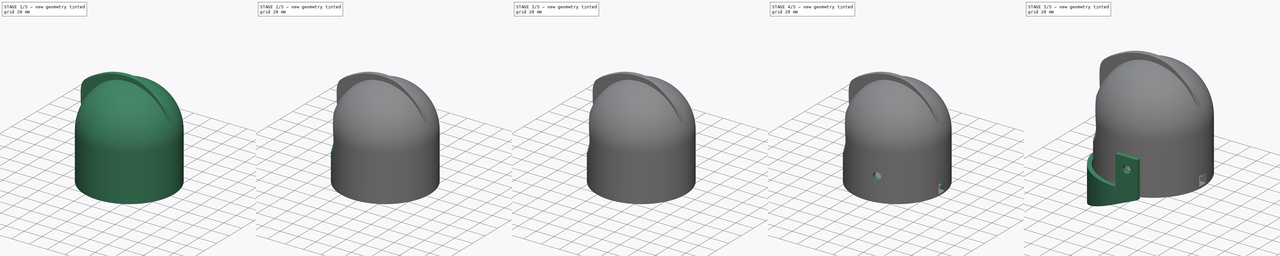
[diagram: build sequence overview — one tinted view per stage of 5, left to right]
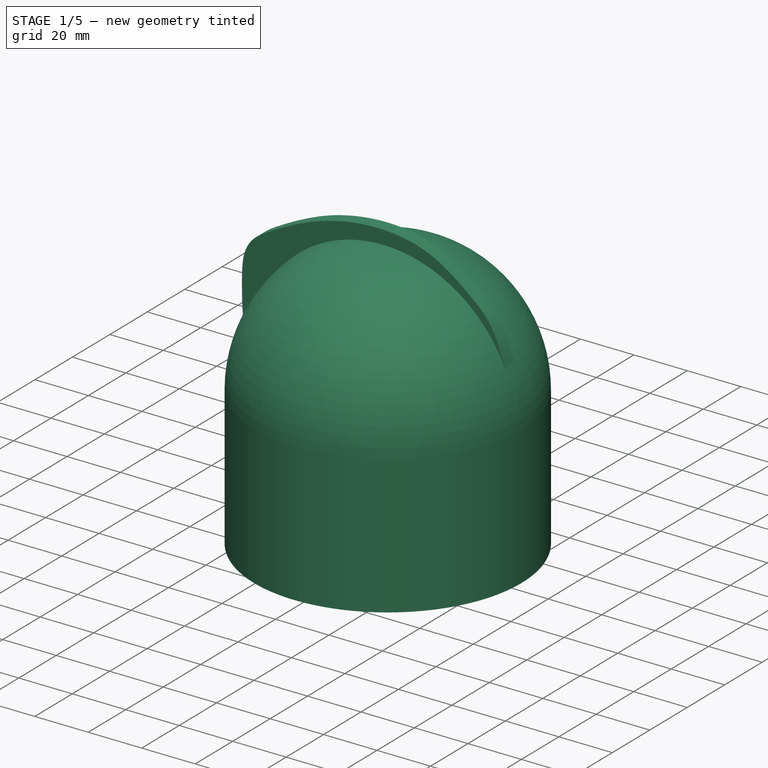
[diagram: stage 1 of 5 — iso view after this stage's code; geometry added in this stage tinted green]
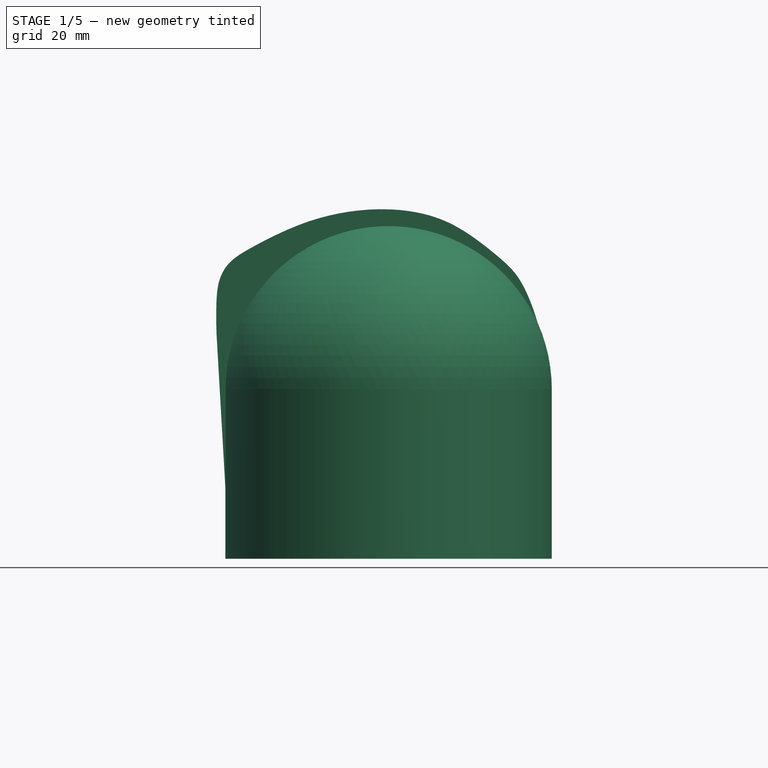
[diagram: stage 1 of 5 — front view after this stage's code; geometry added in this stage tinted green]
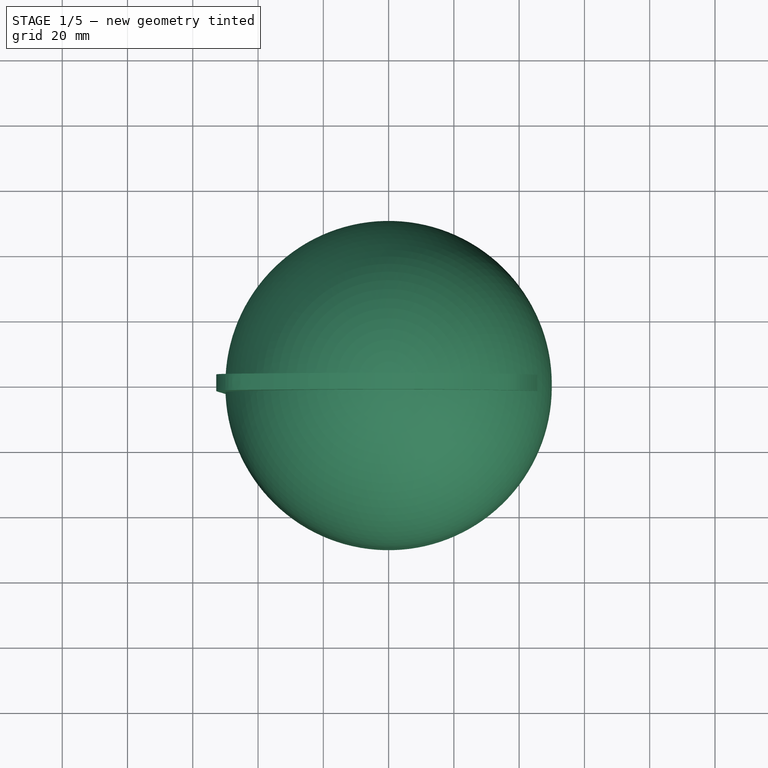
[diagram: stage 1 of 5 — top view after this stage's code; geometry added in this stage tinted green]
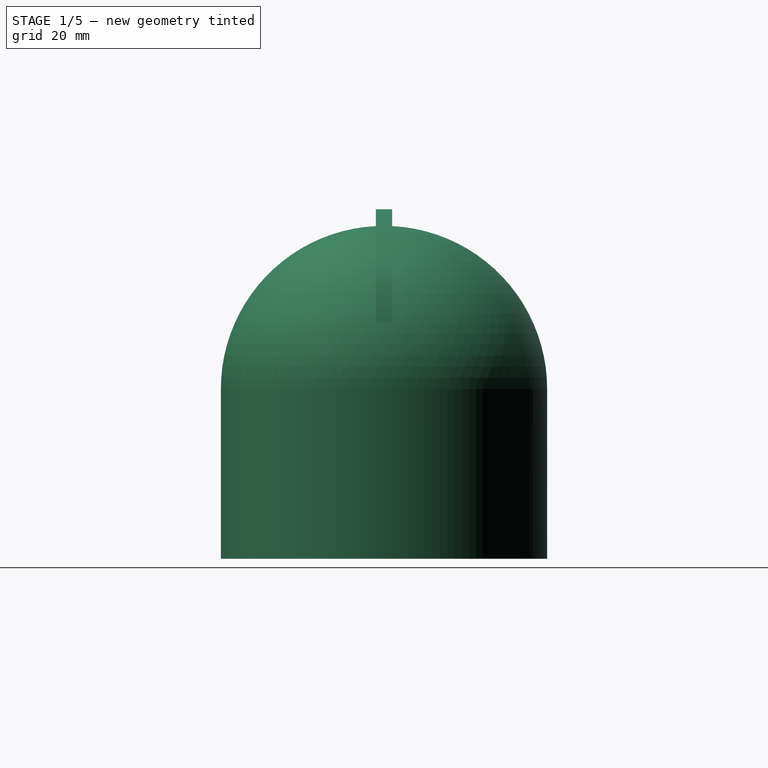
[diagram: stage 1 of 5 — right view after this stage's code; geometry added in this stage tinted green]
FCSTD DOCUMENT  (FreeCAD 1.0R39319 (Git))
Label: iron_robot
License: All rights reserved
LicenseURL: http://en.wikipedia.org/wiki/All_rights_reserved
objects: Sketcher::SketchObject×27, PartDesign::Pocket×13, PartDesign::Pad×11, PartDesign::Plane×9, PartDesign::Body×4, PartDesign::Chamfer×2, PartDesign::Revolution×1, PartDesign::Mirrored×1
note: 150 computed .brp shape members not serialized (recipe doc carries the construction recipe); baked Part::Feature solids carry a one-line shape summary decoded from their .brp

FEATURE [Sketcher::SketchObject] Sketch  label="Sketch_Casque"
  ArcFitTolerance = 1e-06
  AttachmentSupport = -> [XZ_Plane]
  FullyConstrained = false
  MakeInternals = false
  MapMode = 5
  Placement = pos=(0,0,0) rot=(1,0,0;1.5708rad)
  sketch-geometry (7):
    g0: ArcOfCircle CenterX=0 CenterY=0 CenterZ=0 NormalX=0 NormalY=0 NormalZ=1 AngleXU=0 Radius=50 StartAngle=1.5708 EndAngle=3.14159
    g1: LineSegment StartX=-50 StartY=6.1e-15 StartZ=0 EndX=-50 EndY=-50 EndZ=0
    g2: LineSegment StartX=-46 StartY=5.6e-15 StartZ=0 EndX=-46 EndY=-50 EndZ=0
    g3: LineSegment StartX=-50 StartY=-50 StartZ=0 EndX=-46 EndY=-50 EndZ=0
    g4: ArcOfCircle CenterX=0 CenterY=0 CenterZ=0 NormalX=0 NormalY=0 NormalZ=1 AngleXU=0 Radius=46 StartAngle=1.5708 EndAngle=3.14159
    g5: LineSegment StartX=3.1e-15 StartY=50 StartZ=0 EndX=2.8e-15 EndY=46 EndZ=0
    g6: GeomPoint X=-50 Y=-30.6131 Z=0
  constraints (17):
    c: Coincident(g0,g-1)
    c: PointOnObject(g0,g-1)
    c: PointOnObject(g0,g-2)
    c: Tangent(g1,g0) = -1.5708
    c: DistanceY(g0,g0) = 50
    c: DistanceY(g1,g0) = 50
    c: PointOnObject(g2,g-1)
    c: Distance(g2) = 50
    c: Vertical(g2)
    c: Coincident(g3,g1)
    c: Coincident(g3,g2)
    c: Coincident(g4,g0)
    c: Coincident(g4,g2)
    c: PointOnObject(g4,g-2)
    c: Coincident(g5,g0)
    c: Coincident(g5,g4)
    c: PointOnObject(g6,g1)
FEATURE [PartDesign::Revolution] Revolution  label="Revolution_Casque"
  Angle = 360
  Angle2 = 60
  Axis = (0,2e-16,1)
  Base = (0,0,0)
  Placement = pos=(0,0,0) rot=(1,0,0;1.5708rad)
  Profile = -> Sketch
  ReferenceAxis = -> Sketch [V_Axis]
  Suppressed = false
  Type = 0
FEATURE [Sketcher::SketchObject] Sketch002  label="Sketch_Crete"
  ArcFitTolerance = 1e-06
  AttachmentSupport = -> [XZ_Plane]
  ExternalGeometry = -> [Sketch]
  FullyConstrained = false
  MakeInternals = false
  MapMode = 5
  Placement = pos=(0,0,0) rot=(1,0,0;1.5708rad)
  sketch-geometry (31):
    g0: ArcOfCircle CenterX=0 CenterY=0 CenterZ=0 NormalX=0 NormalY=0 NormalZ=1 AngleXU=0 Radius=47.9391 StartAngle=0 EndAngle=3.14159
    g1: LineSegment StartX=-47.9391 StartY=5.9e-15 StartZ=0 EndX=-47.9391 EndY=-30.6131 EndZ=0
    g2: LineSegment StartX=-47.9391 StartY=-30.6131 StartZ=0 EndX=-50 EndY=-30.6131 EndZ=0
    g3-g16: Circle [constr] x14 (B-spline internal-alignment scaffolding for g17; pole/knot coordinates omitted)
    g17: BSplineCurve PolesCount=14 KnotsCount=12 Degree=3 IsPeriodic=0
    g18-g29: GeomPoint [constr] x12 (B-spline internal-alignment scaffolding for g17; pole/knot coordinates omitted)
    g30: LineSegment StartX=47.9391 StartY=0 StartZ=0 EndX=47.9252 EndY=0 EndZ=0
  constraints (16):
    c: Coincident(g0,g-1)
    c: PointOnObject(g0,g-1)
    c: PointOnObject(g0,g-1)
    c: Coincident(g1,g0)
    c: Vertical(g1)
    c: Coincident(g2,g1)
    c: Horizontal(g2)
    c: Weight(g3) = 1
    c: Equal(g3, g4-g16) x13
    c: InternalAlignment(g3-g16 -> g17) x14
    c: InternalAlignment(g18-g29 -> g17) x12
    c: Coincident(g3,g2)
    c: PointOnObject(g16,g-1)
    c: Coincident(g30,g0)
    c: Coincident(g30,g17)
    c: Coincident(g17,g-3)
FEATURE [PartDesign::Pad] Pad  label="Pad_Crete"
  BaseFeature = -> Revolution
  Direction = (0,-1,2e-16)
  Length = 5
  Length2 = 10
  Midplane = true
  Placement = pos=(0,0,0) rot=(1,0,0;1.5708rad)
  Profile = -> Sketch002
  ReferenceAxis = -> Sketch002 [N_Axis]
  Refine = true
  Suppressed = false
  Type = 0
FEATURE [PartDesign::Body] Body  label="head"
  AllowCompound = false
  Group = -> [Sketch,Revolution,Sketch002,Pad,DatumPlane004,Sketch006,DatumPlane,Sketch007,Pocket,DatumPlane005,Sketch008,Pocket001,Sketch009,Pocket002,DatumPlane006,Sketch010,Pocket003,Pad007,Sketch011,Pocket004,DatumPlane007,Sketch012,Pocket005,Pad006,Sketch013,Pocket006,DatumPlane008,Sketch014,Pad001,Sketch015,Pocket007,DatumPlane009,Sketch016,Pocket008,Chamfer,Chamfer001,Sketch017,Pocket009,Sketch023,+3 more]
  Origin = -> Origin
  Tip = -> Pocket011
FEATURE [Sketcher::SketchObject] Sketch026
  ArcFitTolerance = 1e-06
  AttachmentOffset = pos=(0,0,-52) rot=(0,0,1;0rad)
  AttachmentSupport = -> [XY_Plane003]
  FullyConstrained = true
  MakeInternals = false
  MapMode = 5
  Placement = pos=(0,0,-52) rot=(0,0,1;0rad)
  sketch-geometry (1):
    g0: Circle CenterX=0 CenterY=0 CenterZ=0 NormalX=0 NormalY=0 NormalZ=1 AngleXU=0 Radius=50
  constraints (2):
    c: Diameter(g0) = 100
    c: Coincident(g0,g-1)
FEATURE [PartDesign::Pad] Pad008
  Direction = (0,0,1)
  Length = 2
  Length2 = 10
  Profile = -> Sketch026
  ReferenceAxis = -> Sketch026 [N_Axis]
  Suppressed = false
  Type = 0
FEATURE [Sketcher::SketchObject] Sketch027
  ArcFitTolerance = 1e-06
  AttachmentSupport = -> [Pad008]
  FullyConstrained = true
  MakeInternals = false
  MapMode = 5
  Placement = pos=(0,0,-50) rot=(0,0,1;0rad)
  sketch-geometry (2):
    g0: Circle CenterX=0 CenterY=0 CenterZ=0 NormalX=0 NormalY=0 NormalZ=1 AngleXU=0 Radius=45.75
    g1: Circle CenterX=0 CenterY=0 CenterZ=0 NormalX=0 NormalY=0 NormalZ=1 AngleXU=0 Radius=43.75
  constraints (4):
    c: Diameter(g0) = 91.5
    c: Coincident(g0,g-1)
    c: Diameter(g1) = 87.5
    c: Coincident(g1,g0)
FEATURE [PartDesign::Pad] Pad009
  BaseFeature = -> Pad008
  Direction = (0,0,1)
  Length = 4
  Length2 = 10
  Profile = -> Sketch027
  ReferenceAxis = -> Sketch027 [N_Axis]
  Suppressed = false
  Type = 0
FEATURE [Sketcher::SketchObject] Sketch028
  ArcFitTolerance = 1e-06
  AttachmentSupport = -> [YZ_Plane003]
  ExternalGeometry = -> [Pad009]
  FullyConstrained = true
  MakeInternals = false
  MapMode = 5
  Placement = pos=(0,0,0) rot=(0.57735,0.57735,0.57735;2.0944rad)
FEATURE [Sketcher::SketchObject] Sketch029
  ArcFitTolerance = 1e-06
  AttachmentSupport = -> [Pad009]
  FullyConstrained = false
  MakeInternals = false
  MapMode = 5
  Placement = pos=(0,0,-46) rot=(0,0,1;0rad)
  sketch-geometry (6):
    g0: LineSegment StartX=46.8426 StartY=0 StartZ=0 EndX=46.8426 EndY=5 EndZ=0
    g1: LineSegment StartX=46.8426 StartY=5 StartZ=0 EndX=41.8426 EndY=5 EndZ=0
    g2: LineSegment StartX=41.8426 StartY=5 StartZ=0 EndX=41.8426 EndY=0 EndZ=0
    g3: LineSegment StartX=41.8426 StartY=0 StartZ=0 EndX=41.8426 EndY=-5 EndZ=0
    g4: LineSegment StartX=41.8426 StartY=-5 StartZ=0 EndX=46.8426 EndY=-5 EndZ=0
    g5: LineSegment StartX=46.8426 StartY=-5 StartZ=0 EndX=46.8426 EndY=0 EndZ=0
  constraints (15):
    c: Coincident(g0,g1)
    c: Coincident(g1,g2)
    c: Horizontal(g1)
    c: Vertical(g0)
    c: Vertical(g2)
    c: Distance(g0,g2) = 5
    c: Distance(g2,g1) = 5
    c: PointOnObject(g2,g-1)
    c: Coincident(g3,g4)
    c: Coincident(g4,g5)
    c: Vertical(g3)
    c: Vertical(g5)
    c: Horizontal(g4)
    c: Distance(g3,g5) = 5
    c: Distance(g4,g3) = 5
FEATURE [PartDesign::Pocket] Pocket012
  BaseFeature = -> Pad009
  Direction = (0,0,-1)
  Length = 4
  Length2 = 5
  Profile = -> Sketch029
  ReferenceAxis = -> Sketch029 [N_Axis]
  Suppressed = false
  Type = 0
FEATURE [Sketcher::SketchObject] Sketch030
  ArcFitTolerance = 1e-06
  AttachmentSupport = -> [XZ_Plane003]
  ExternalGeometry = -> [Pad008]
  FullyConstrained = false
  MakeInternals = false
  MapMode = 5
  Placement = pos=(0,0,0) rot=(1,0,0;1.5708rad)
  sketch-geometry (9):
    g0: LineSegment StartX=28.2134 StartY=-50 StartZ=0 EndX=28.2134 EndY=-29.4556 EndZ=0
    g1: LineSegment StartX=-11.9618 StartY=5.04317 StartZ=0 EndX=-11.9618 EndY=-50 EndZ=0
    g2: LineSegment StartX=-11.9618 StartY=-50 StartZ=0 EndX=28.2134 EndY=-50 EndZ=0
    g3: LineSegment StartX=-11.9618 StartY=5.04317 StartZ=0 EndX=-6.97608 EndY=5.04317 EndZ=0
    g4: LineSegment StartX=-6.97608 StartY=5.04317 StartZ=0 EndX=28.2134 EndY=-29.4556 EndZ=0
    g5: LineSegment StartX=-7.96184 StartY=0.407958 StartZ=0 EndX=24.2134 EndY=-31.1357 EndZ=0
    g6: LineSegment StartX=24.2134 StartY=-46 StartZ=0 EndX=24.2134 EndY=-31.1357 EndZ=0
    g7: LineSegment StartX=-7.96184 StartY=-46 StartZ=0 EndX=24.2134 EndY=-46 EndZ=0
    g8: LineSegment StartX=-7.96184 StartY=0.407958 StartZ=0 EndX=-7.96184 EndY=-46 EndZ=0
  constraints (14):
    c: PointOnObject(g0,g-3)
    c: Vertical(g0)
    c: PointOnObject(g1,g-3)
    c: Vertical(g1)
    c: Coincident(g1,g2)
    c: Coincident(g2,g0)
    c: Coincident(g1,g3)
    c: Horizontal(g3)
    c: Coincident(g3,g4)
    c: Coincident(g4,g0)
    c: Coincident(g5,g6)
    c: Coincident(g5,g8)
    c: Coincident(g6,g7)
    c: Coincident(g7,g8)
FEATURE [PartDesign::Pad] Pad010
  BaseFeature = -> Pocket012
  Direction = (0,-1,2e-16)
  Length = 10
  Length2 = 10
  Midplane = true
  Profile = -> Sketch030
  ReferenceAxis = -> Sketch030 [N_Axis]
  Suppressed = false
  Type = 0
FEATURE [PartDesign::Body] Body003  label="base_plate"
  AllowCompound = false
  Group = -> [Sketch026,Pad008,Sketch027,Pad009,Sketch028,Sketch029,Pocket012,Sketch030,Pad010]
  Origin = -> Origin003
  Tip = -> Pad010
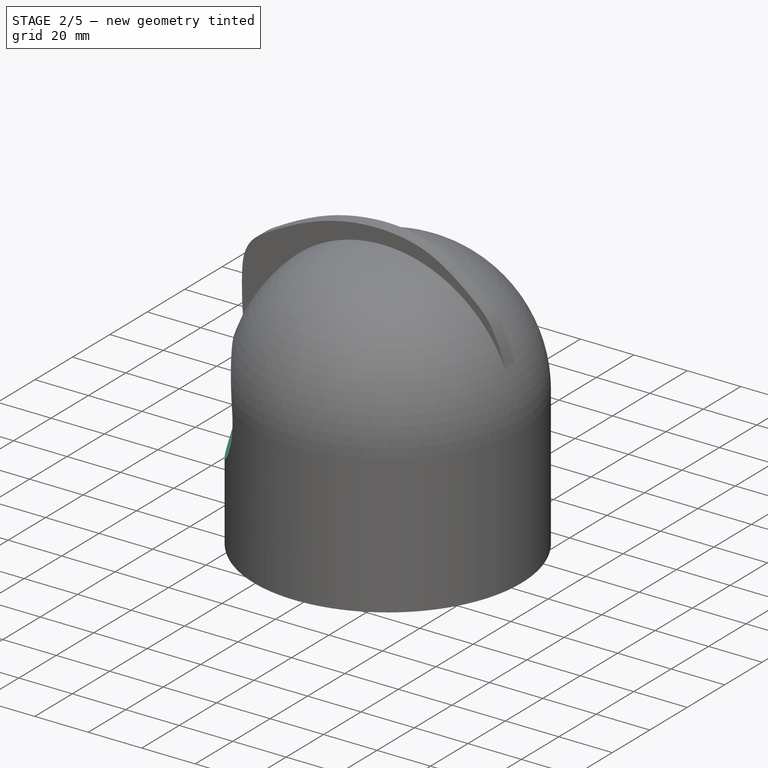
[diagram: stage 2 of 5 — iso view after this stage's code; geometry added in this stage tinted green]
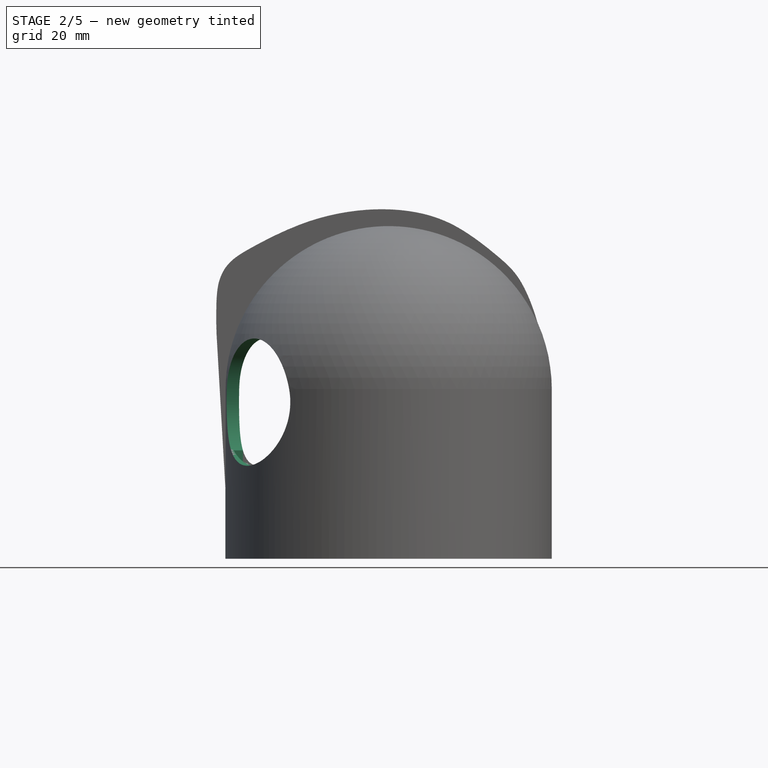
[diagram: stage 2 of 5 — front view after this stage's code; geometry added in this stage tinted green]
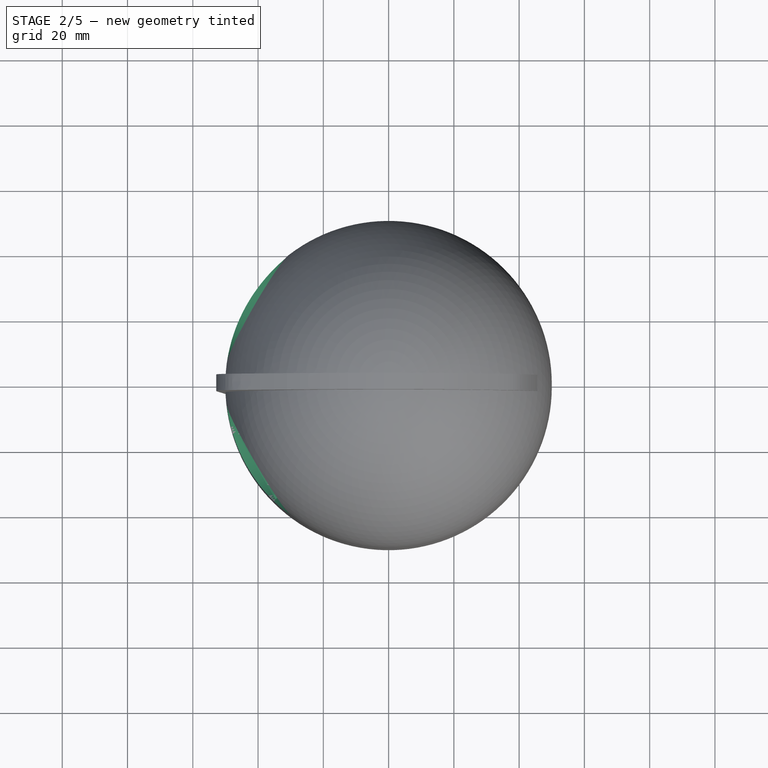
[diagram: stage 2 of 5 — top view after this stage's code; geometry added in this stage tinted green]
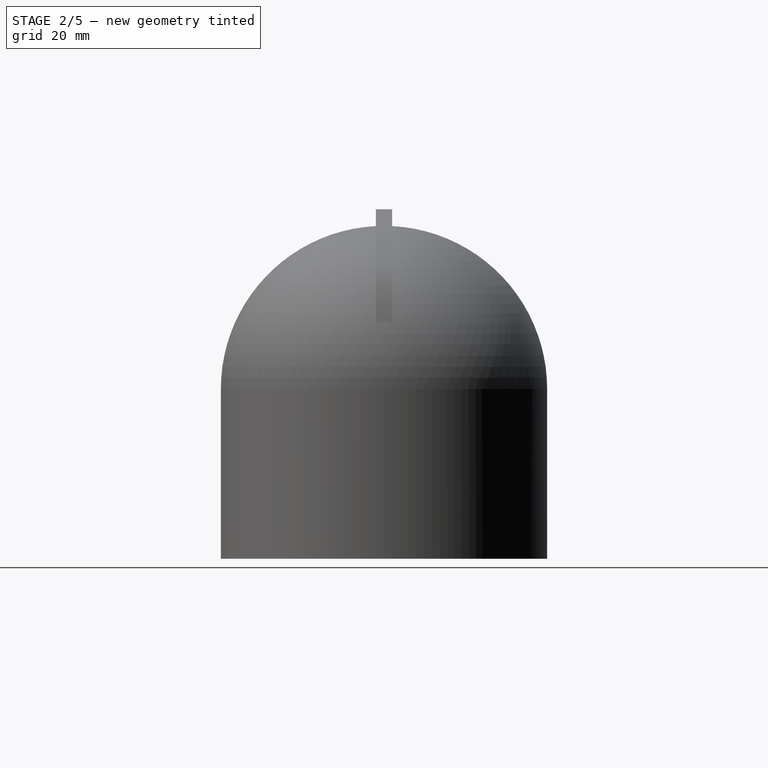
[diagram: stage 2 of 5 — right view after this stage's code; geometry added in this stage tinted green]
FEATURE [PartDesign::Plane] DatumPlane004  label="DatumPlane_lignes_oeils"
  AttachmentOffset = pos=(0,0,-4) rot=(0,0,1;0rad)
  AttachmentSupport = -> [XY_Plane]
  Length = 123.035
  MapMode = 5
  Placement = pos=(0,0,-4) rot=(0,0,1;0rad)
  ResizeMode = 0
  Width = 120.147
FEATURE [Sketcher::SketchObject] Sketch006  label="Sketch_lignes_oeils"
  ArcFitTolerance = 1e-06
  AttachmentSupport = -> [DatumPlane004]
  FullyConstrained = true
  MakeInternals = false
  MapMode = 5
  Placement = pos=(0,0,-4) rot=(0,0,1;0rad)
  sketch-geometry (5):
    g0: LineSegment StartX=0 StartY=0 StartZ=0 EndX=-44.1673 EndY=25.5 EndZ=0
    g1: LineSegment StartX=0 StartY=0 StartZ=0 EndX=-44.1673 EndY=-25.5 EndZ=0
    g2: GeomPoint X=0 Y=0 Z=0
    g3: LineSegment StartX=0 StartY=0 StartZ=0 EndX=-50 EndY=0 EndZ=0
    g4: GeomPoint X=-50 Y=0 Z=0
  constraints (11):
    c: Distance(g1,g1) = 51
    c: Coincident(g2,g-1)
    c: Coincident(g0,g2)
    c: Coincident(g1,g0)
    c: Distance(g0) = 51
    c: Angle(g0,g-1) = 0.523599
    c: Angle(g1,g-1) = 2.61799
    c: Distance(g3) = 50
    c: Coincident(g3,g0)
    c: PointOnObject(g3,g-1)
    c: Coincident(g4,g3)
FEATURE [PartDesign::Plane] DatumPlane  label="DatumPlane_oD"
  AttachmentSupport = -> [Sketch006]
  Length = 161.963
  MapMode = 47
  Placement = pos=(-44.1673,25.5,-4) rot=(-0.377964,0.654654,0.654654;3.86433rad)
  ResizeMode = 0
  Width = 129.166
FEATURE [Sketcher::SketchObject] Sketch007  label="Sketch_oD_1"
  ArcFitTolerance = 1e-06
  AttachmentSupport = -> [DatumPlane]
  FullyConstrained = true
  MakeInternals = false
  MapMode = 5
  Placement = pos=(-44.1673,25.5,-4) rot=(-0.377964,0.654654,0.654654;3.86433rad)
  sketch-geometry (1):
    g0: Circle CenterX=0 CenterY=0 CenterZ=0 NormalX=0 NormalY=0 NormalZ=1 AngleXU=0 Radius=19.5
  constraints (2):
    c: Diameter(g0) = 39
    c: Coincident(g0,g-1)
FEATURE [PartDesign::Pocket] Pocket
  BaseFeature = -> Pad
  Direction = (0.866025,-0.5,0)
  Length = 10
  Length2 = 5
  Placement = pos=(0,0,0) rot=(1,0,0;1.5708rad)
  Profile = -> Sketch007
  ReferenceAxis = -> Sketch007 [N_Axis]
  Suppressed = false
  Type = 0
FEATURE [PartDesign::Plane] DatumPlane005  label="DatumPlane_oG"
  AttachmentSupport = -> [Sketch006]
  Length = 161.963
  MapMode = 47
  Placement = pos=(-44.1673,-25.5,-4) rot=(0.377964,0.654654,-0.654654;3.86433rad)
  ResizeMode = 0
  Width = 129.166
FEATURE [Sketcher::SketchObject] Sketch008  label="Sketch_oD1"
  ArcFitTolerance = 1e-06
  AttachmentSupport = -> [DatumPlane005]
  FullyConstrained = true
  MakeInternals = false
  MapMode = 5
  Placement = pos=(-44.1673,-25.5,-4) rot=(0.377964,0.654654,-0.654654;3.86433rad)
  sketch-geometry (1):
    g0: Circle CenterX=0 CenterY=0 CenterZ=0 NormalX=0 NormalY=0 NormalZ=1 AngleXU=0 Radius=19.5
  constraints (2):
    c: Diameter(g0) = 39
    c: Coincident(g0,g-1)
FEATURE [PartDesign::Pocket] Pocket001  label="Pocket_oD1"
  BaseFeature = -> Pocket
  Direction = (0.866025,0.5,-1e-16)
  Length = 10
  Length2 = 5
  Placement = pos=(0,0,0) rot=(1,0,0;1.5708rad)
  Profile = -> Sketch008
  ReferenceAxis = -> Sketch008 [N_Axis]
  Reversed = true
  Suppressed = false
  Type = 0
FEATURE [Sketcher::SketchObject] Sketch009  label="Sketch_oG1"
  ArcFitTolerance = 1e-06
  AttachmentSupport = -> [DatumPlane005]
  FullyConstrained = true
  MakeInternals = false
  MapMode = 5
  Placement = pos=(-44.1673,-25.5,-4) rot=(0.377964,0.654654,-0.654654;3.86433rad)
  sketch-geometry (1):
    g0: Circle CenterX=0 CenterY=0 CenterZ=0 NormalX=0 NormalY=0 NormalZ=1 AngleXU=0 Radius=19.5
  constraints (2):
    c: Diameter(g0) = 39
    c: Coincident(g0,g-1)
FEATURE [PartDesign::Pocket] Pocket002  label="Pocket_oG1"
  BaseFeature = -> Pocket001
  Direction = (0.866025,0.5,-1e-16)
  Length = 15
  Length2 = 5
  Placement = pos=(0,0,0) rot=(1,0,0;1.5708rad)
  Profile = -> Sketch009
  ReferenceAxis = -> Sketch009 [N_Axis]
  Suppressed = false
  Type = 0
FEATURE [PartDesign::Plane] DatumPlane006  label="DatumPlane_oG2"
  AttachmentOffset = pos=(0,0,-11) rot=(0,0,1;0rad)
  AttachmentSupport = -> [Sketch006]
  Length = 161.963
  MapMode = 47
  Placement = pos=(-34.641,-20,-4) rot=(0.377964,0.654654,-0.654654;3.86433rad)
  ResizeMode = 0
  Width = 129.166
FEATURE [Sketcher::SketchObject] Sketch010  label="Sketch_oG2"
  ArcFitTolerance = 1e-06
  AttachmentSupport = -> [DatumPlane006]
  FullyConstrained = false
  MakeInternals = false
  MapMode = 5
  Placement = pos=(-34.641,-20,-4) rot=(0.377964,0.654654,-0.654654;3.86433rad)
  sketch-geometry (4):
    g0: LineSegment StartX=12.7258 StartY=28.2624 StartZ=0 EndX=-12.9095 EndY=28.2624 EndZ=0
    g1: LineSegment StartX=-12.9095 StartY=28.2624 StartZ=0 EndX=-12.9095 EndY=13.8014 EndZ=0
    g2: LineSegment StartX=-12.9095 StartY=13.8014 StartZ=0 EndX=12.7258 EndY=13.8014 EndZ=0
    g3: LineSegment StartX=12.7258 StartY=13.8014 StartZ=0 EndX=12.7258 EndY=28.2624 EndZ=0
  constraints (8):
    c: Coincident(g0,g1)
    c: Coincident(g1,g2)
    c: Coincident(g2,g3)
    c: Coincident(g3,g0)
    c: Horizontal(g0)
    c: Horizontal(g2)
    c: Vertical(g1)
    c: Vertical(g3)
FEATURE [PartDesign::Pocket] Pocket003  label="Pocket_oG2"
  BaseFeature = -> Pocket002
  Direction = (0.866025,0.5,-1e-16)
  Length = 7.5
  Length2 = 5
  Placement = pos=(0,0,0) rot=(1,0,0;1.5708rad)
  Profile = -> Sketch010
  ReferenceAxis = -> Sketch010 [N_Axis]
  Reversed = true
  Suppressed = false
  Type = 0
FEATURE [PartDesign::Body] Body002  label="boulon"
  AllowCompound = false
  Group = -> [Sketch021,Pad004,Sketch022,Pad005]
  Origin = -> Origin002
  Placement = pos=(0,100,0) rot=(0,0,1;0rad)
  Tip = -> Pad005
FEATURE [Sketcher::SketchObject] Sketch023
  ArcFitTolerance = 1e-06
  AttachmentOffset = pos=(0,0,4) rot=(0,0,1;0rad)
  AttachmentSupport = -> [DatumPlane007]
  FullyConstrained = false
  MakeInternals = false
  MapMode = 5
  Placement = pos=(-38.1051,22,-4) rot=(-0.377964,0.654654,0.654654;3.86433rad)
  sketch-geometry (10):
    g0: LineSegment StartX=12.0031 StartY=-17.8866 StartZ=0 EndX=7.79481 EndY=-20.2753 EndZ=0
    g1: LineSegment StartX=7.79481 StartY=-20.2753 StartZ=0 EndX=12.9865 EndY=-31.5454 EndZ=0
    g2: LineSegment StartX=12.9865 StartY=-31.5454 StartZ=0 EndX=14.3181 EndY=-31.0811 EndZ=0
    g3: LineSegment StartX=14.3181 StartY=-31.0811 StartZ=0 EndX=14.3181 EndY=-18.0545 EndZ=0
    g4: LineSegment StartX=14.3181 StartY=-18.0545 StartZ=0 EndX=12.0031 EndY=-17.8866 EndZ=0
    g5: LineSegment StartX=-7.93585 StartY=-20.1849 StartZ=0 EndX=-12.4609 EndY=-17.3381 EndZ=0
    g6: LineSegment StartX=-12.4609 StartY=-17.3381 StartZ=0 EndX=-14.9296 EndY=-18.0277 EndZ=0
    g7: LineSegment StartX=-14.9296 StartY=-18.0277 StartZ=0 EndX=-14.9296 EndY=-31.4522 EndZ=0
    g8: LineSegment StartX=-14.9296 StartY=-31.4522 StartZ=0 EndX=-12.363 EndY=-31.8418 EndZ=0
    g9: LineSegment StartX=-12.363 StartY=-31.8418 StartZ=0 EndX=-7.93585 EndY=-20.1849 EndZ=0
  constraints (12):
    c: Coincident(g0,g1)
    c: Coincident(g1,g2)
    c: Coincident(g2,g3)
    c: Vertical(g3)
    c: Coincident(g3,g4)
    c: Coincident(g4,g0)
    c: Coincident(g5,g6)
    c: Coincident(g6,g7)
    c: Vertical(g7)
    c: Coincident(g7,g8)
    c: Coincident(g8,g9)
    c: Coincident(g9,g5)
FEATURE [Sketcher::SketchObject] Sketch024
  ArcFitTolerance = 1e-06
  AttachmentOffset = pos=(0,0,4) rot=(0,0,1;0rad)
  AttachmentSupport = -> [DatumPlane006]
  FullyConstrained = false
  MakeInternals = false
  MapMode = 5
  Placement = pos=(-38.1051,-22,-4) rot=(0.377964,0.654654,-0.654654;3.86433rad)
  sketch-geometry (10):
    g0: LineSegment StartX=-11.4386 StartY=18.6145 StartZ=0 EndX=-7.62286 EndY=19.9446 EndZ=0
    g1: LineSegment StartX=-7.62286 StartY=19.9446 StartZ=0 EndX=-11.6603 EndY=28.9592 EndZ=0
    g2: LineSegment StartX=-11.6603 StartY=28.9592 StartZ=0 EndX=-13.971 EndY=29.263 EndZ=0
    g3: LineSegment StartX=-13.971 StartY=29.263 StartZ=0 EndX=-13.971 EndY=18.6222 EndZ=0
    g4: LineSegment StartX=-13.971 StartY=18.6222 StartZ=0 EndX=-11.4386 EndY=18.6145 EndZ=0
    g5: LineSegment StartX=10.1824 StartY=18.743 StartZ=0 EndX=7.91075 EndY=20.6055 EndZ=0
    g6: LineSegment StartX=7.91075 StartY=20.6055 StartZ=0 EndX=11.8146 EndY=29.6211 EndZ=0
    g7: LineSegment StartX=11.8146 StartY=29.6211 StartZ=0 EndX=14.6951 EndY=29.7595 EndZ=0
    g8: LineSegment StartX=14.6951 StartY=29.7595 StartZ=0 EndX=15.5086 EndY=18.1291 EndZ=0
    g9: LineSegment StartX=15.5086 StartY=18.1291 StartZ=0 EndX=10.1824 EndY=18.743 EndZ=0
  constraints (11):
    c: Coincident(g0,g1)
    c: Coincident(g1,g2)
    c: Coincident(g2,g3)
    c: Vertical(g3)
    c: Coincident(g3,g4)
    c: Coincident(g4,g0)
    c: Coincident(g5,g6)
    c: Coincident(g6,g7)
    c: Coincident(g7,g8)
    c: Coincident(g8,g9)
    c: Coincident(g9,g5)
FEATURE [PartDesign::Pad] Pad007
  BaseFeature = -> Pocket003
  Direction = (-0.866025,-0.5,1e-16)
  Length = 3.5
  Length2 = 10
  Placement = pos=(0,0,0) rot=(1,0,0;1.5708rad)
  Profile = -> Sketch024
  ReferenceAxis = -> Sketch024 [N_Axis]
  Suppressed = false
  Type = 0
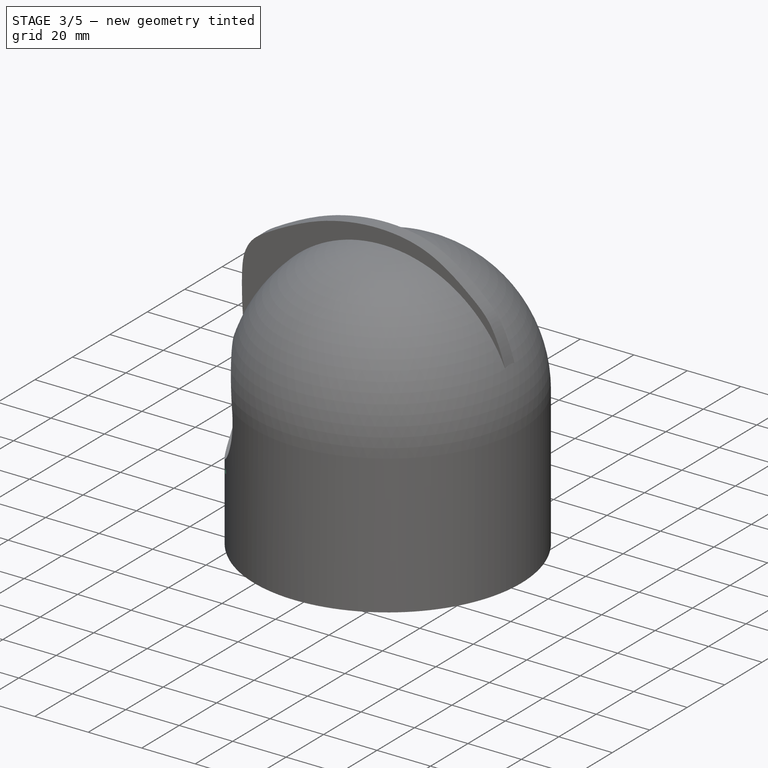
[diagram: stage 3 of 5 — iso view after this stage's code; geometry added in this stage tinted green]
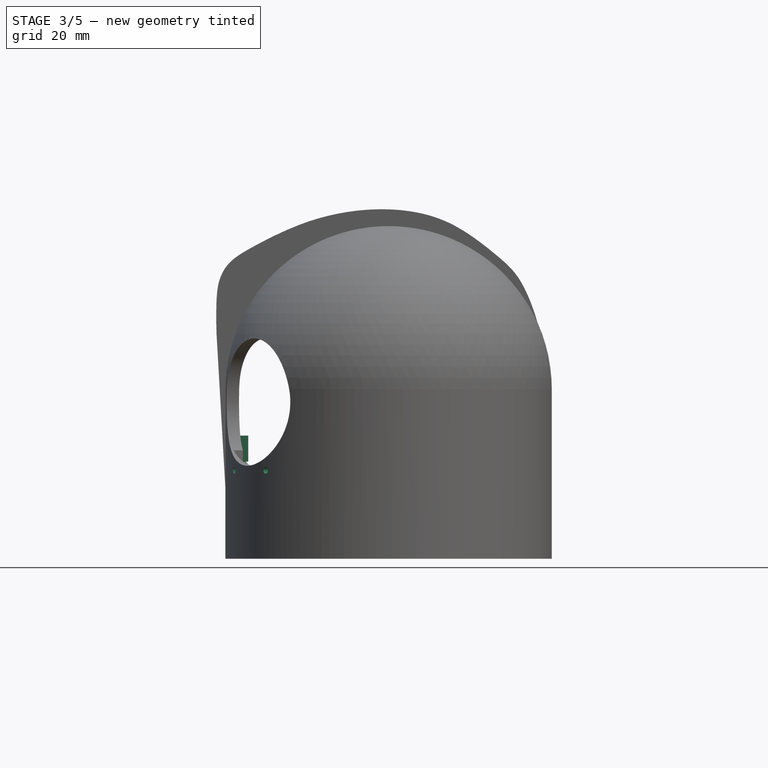
[diagram: stage 3 of 5 — front view after this stage's code; geometry added in this stage tinted green]
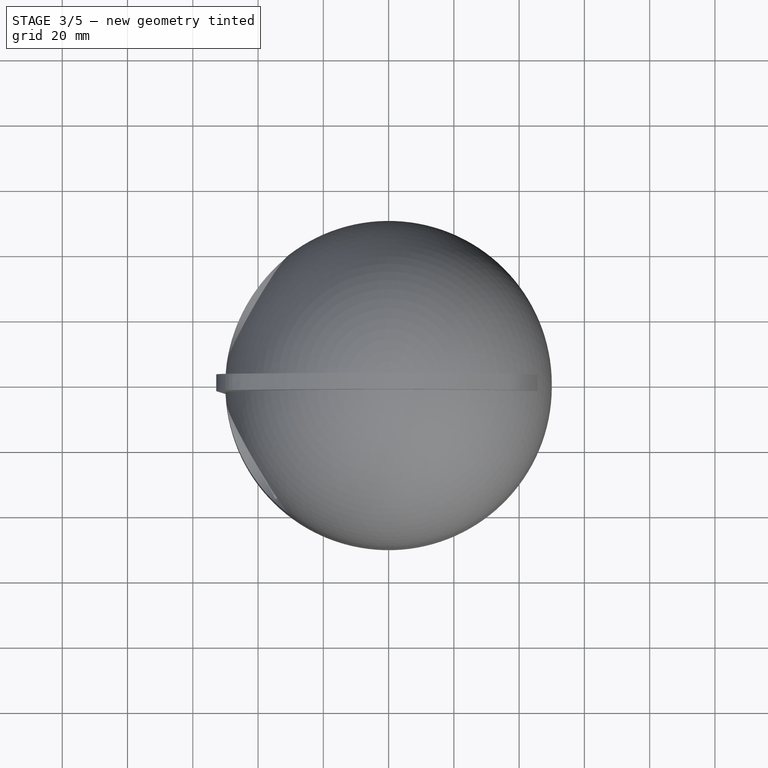
[diagram: stage 3 of 5 — top view after this stage's code; geometry added in this stage tinted green]
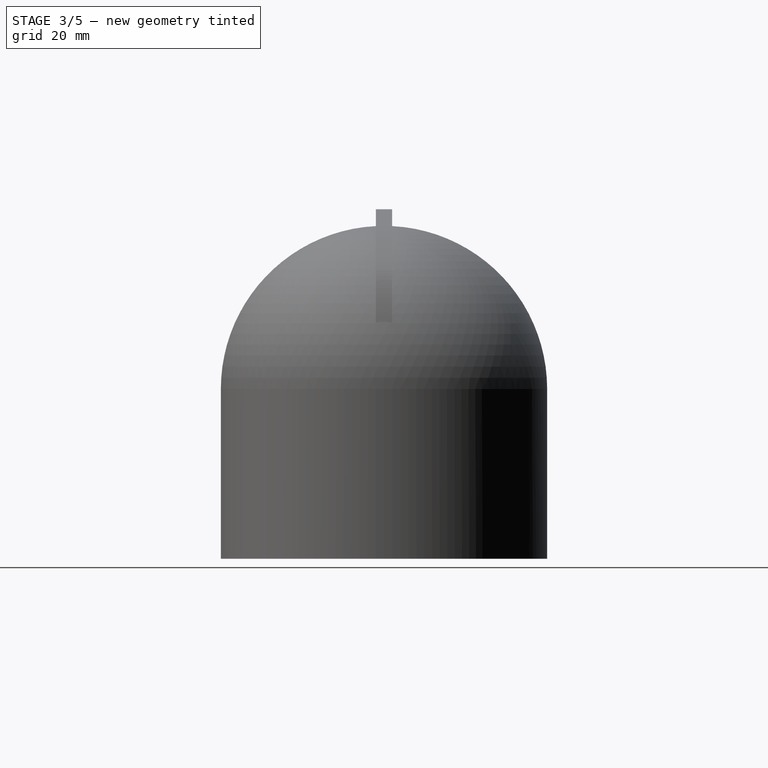
[diagram: stage 3 of 5 — right view after this stage's code; geometry added in this stage tinted green]
FEATURE [PartDesign::Pocket] Pocket004  label="Pocket_oG3"
  BaseFeature = -> Pad007
  Direction = (0.866025,0.5,-1e-16)
  Length = 15
  Length2 = 5
  Placement = pos=(0,0,0) rot=(1,0,0;1.5708rad)
  Profile = -> Sketch011
  ReferenceAxis = -> Sketch011 [N_Axis]
  Reversed = true
  Suppressed = false
  Type = 0
FEATURE [PartDesign::Pocket] Pocket005  label="Pocket_oD2"
  BaseFeature = -> Pocket004
  Direction = (0.866025,-0.5,0)
  Length = 7.5
  Length2 = 5
  Placement = pos=(0,0,0) rot=(1,0,0;1.5708rad)
  Profile = -> Sketch012
  ReferenceAxis = -> Sketch012 [N_Axis]
  Reversed = true
  Suppressed = false
  Type = 0
FEATURE [PartDesign::Pad] Pad006
  BaseFeature = -> Pocket005
  Direction = (-0.866025,0.5,0)
  Length = 3.5
  Length2 = 10
  Placement = pos=(0,0,0) rot=(1,0,0;1.5708rad)
  Profile = -> Sketch023
  ReferenceAxis = -> Sketch023 [N_Axis]
  Suppressed = false
  Type = 0
FEATURE [PartDesign::Pocket] Pocket006  label="Pocket_oD3"
  BaseFeature = -> Pad006
  Direction = (0.866025,-0.5,0)
  Length = 15
  Length2 = 5
  Placement = pos=(0,0,0) rot=(1,0,0;1.5708rad)
  Profile = -> Sketch013
  ReferenceAxis = -> Sketch013 [N_Axis]
  Reversed = true
  Suppressed = false
  Type = 0
FEATURE [PartDesign::Pad] Pad001  label="Pad_tof0"
  BaseFeature = -> Pocket006
  Direction = (-1,0,0)
  Length = 4
  Length2 = 10
  Placement = pos=(0,0,0) rot=(1,0,0;1.5708rad)
  Profile = -> Sketch014
  ReferenceAxis = -> Sketch014 [N_Axis]
  Suppressed = false
  Type = 0
FEATURE [PartDesign::Pocket] Pocket007  label="Pocket_tof1"
  BaseFeature = -> Pad001
  Direction = (1,0,0)
  Length = 6
  Length2 = 5
  Placement = pos=(0,0,0) rot=(1,0,0;1.5708rad)
  Profile = -> Sketch015
  ReferenceAxis = -> Sketch015 [N_Axis]
  Reversed = true
  Suppressed = false
  Type = 0
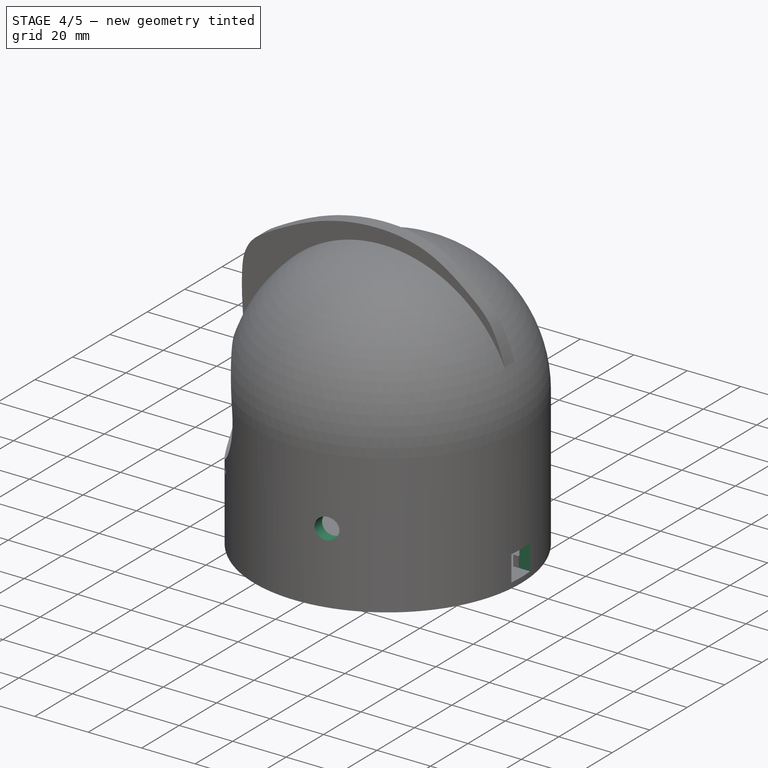
[diagram: stage 4 of 5 — iso view after this stage's code; geometry added in this stage tinted green]
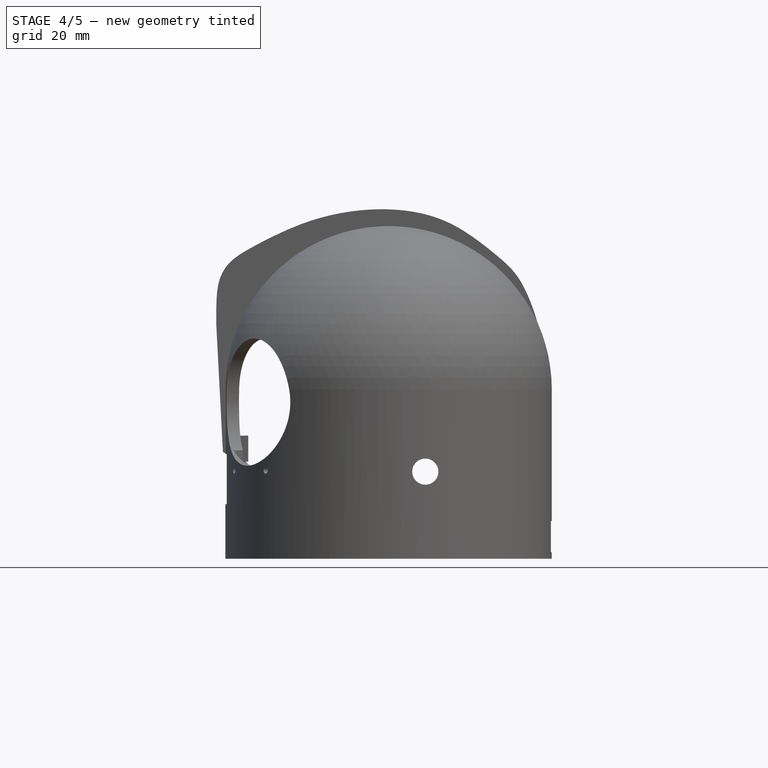
[diagram: stage 4 of 5 — front view after this stage's code; geometry added in this stage tinted green]
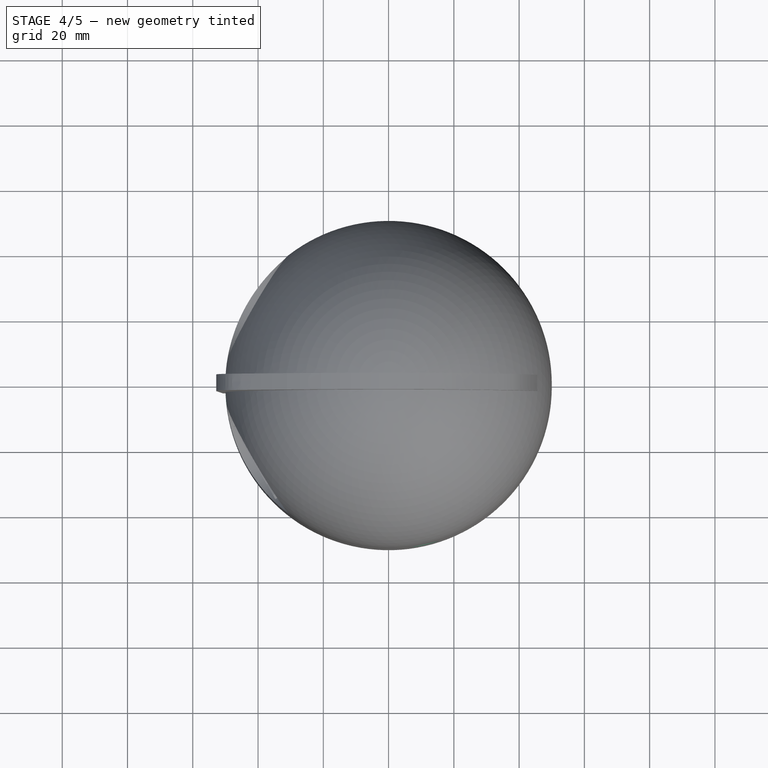
[diagram: stage 4 of 5 — top view after this stage's code; geometry added in this stage tinted green]
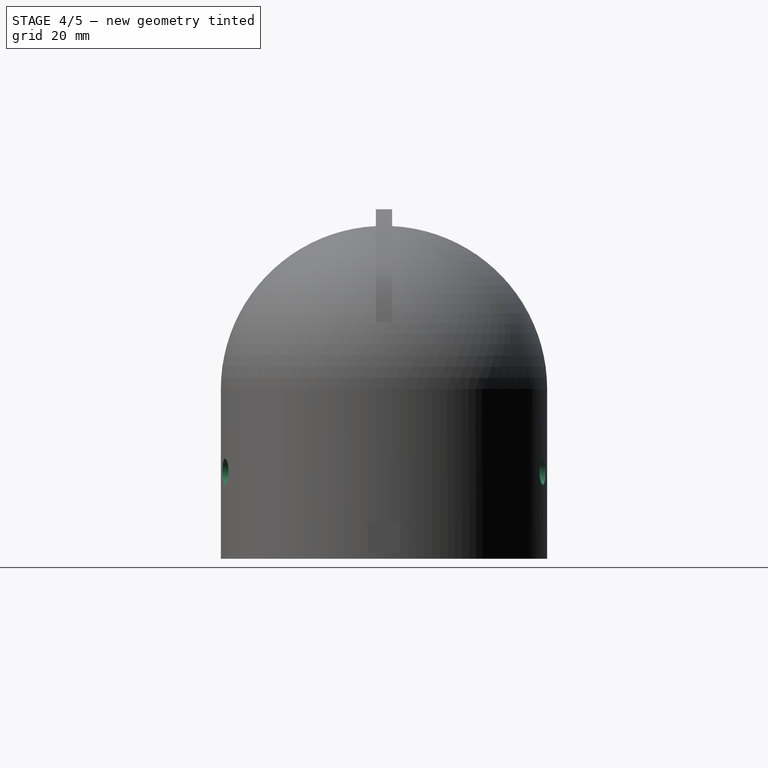
[diagram: stage 4 of 5 — right view after this stage's code; geometry added in this stage tinted green]
FEATURE [PartDesign::Plane] DatumPlane009  label="DatumPlane_tof1"
  AttachmentSupport = -> [Pocket007]
  Length = 123.557
  MapMode = 11
  Placement = pos=(0,0,0) rot=(0,0.707107,-0.707107;3.14159rad)
  ResizeMode = 0
  Width = 125.875
FEATURE [Sketcher::SketchObject] Sketch016
  ArcFitTolerance = 1e-06
  AttachmentSupport = -> [DatumPlane009]
  FullyConstrained = false
  MakeInternals = false
  MapMode = 5
  Placement = pos=(0,0,0) rot=(0,0.707107,-0.707107;3.14159rad)
  sketch-geometry (4):
    g0: LineSegment StartX=51.4981 StartY=18.8094 StartZ=0 EndX=51.4981 EndY=36.3645 EndZ=0
    g1: LineSegment StartX=51.4981 StartY=36.3645 StartZ=0 EndX=43.6622 EndY=31.4436 EndZ=0
    g2: LineSegment StartX=43.6622 StartY=31.4436 StartZ=0 EndX=43.6622 EndY=23.7402 EndZ=0
    g3: LineSegment StartX=43.6622 StartY=23.7402 StartZ=0 EndX=51.4981 EndY=18.8094 EndZ=0
  constraints (6):
    c: Coincident(g0,g1)
    c: Coincident(g1,g2)
    c: Coincident(g2,g3)
    c: Coincident(g3,g0)
    c: Vertical(g0)
    c: Vertical(g2)
FEATURE [PartDesign::Pocket] Pocket008
  BaseFeature = -> Pocket007
  Direction = (0,1,2e-16)
  Length = 5
  Length2 = 5
  Midplane = true
  Placement = pos=(0,0,0) rot=(1,0,0;1.5708rad)
  Profile = -> Sketch016
  ReferenceAxis = -> Sketch016 [N_Axis]
  Suppressed = false
  Type = 0
FEATURE [PartDesign::Chamfer] Chamfer
  Angle = 45
  Base = -> Pocket008 [Edge17,Edge16]
  BaseFeature = -> Pocket008
  ChamferType = 0
  FlipDirection = false
  Placement = pos=(0,0,0) rot=(1,0,0;1.5708rad)
  Size = 4
  Size2 = 1
  SupportTransform = false
  Suppressed = false
  UseAllEdges = false
FEATURE [PartDesign::Chamfer] Chamfer001
  Angle = 45
  Base = -> Chamfer [Edge18,Edge19]
  BaseFeature = -> Chamfer
  ChamferType = 0
  FlipDirection = false
  Placement = pos=(0,0,0) rot=(1,0,0;1.5708rad)
  Size = 4
  Size2 = 1
  SupportTransform = false
  Suppressed = false
  UseAllEdges = false
FEATURE [Sketcher::SketchObject] Sketch017
  ArcFitTolerance = 1e-06
  AttachmentSupport = -> [DatumPlane009]
  FullyConstrained = false
  MakeInternals = false
  MapMode = 5
  Placement = pos=(0,0,0) rot=(0,0.707107,-0.707107;3.14159rad)
  sketch-geometry (4):
    g0: LineSegment StartX=-51.4514 StartY=50.4212 StartZ=0 EndX=-51.4514 EndY=40.4212 EndZ=0
    g1: LineSegment StartX=-51.4514 StartY=40.4212 StartZ=0 EndX=-44.4514 EndY=40.4212 EndZ=0
    g2: LineSegment StartX=-44.4514 StartY=40.4212 StartZ=0 EndX=-44.4514 EndY=50.4212 EndZ=0
    g3: LineSegment StartX=-44.4514 StartY=50.4212 StartZ=0 EndX=-51.4514 EndY=50.4212 EndZ=0
  constraints (10):
    c: Coincident(g0,g1)
    c: Coincident(g1,g2)
    c: Coincident(g2,g3)
    c: Coincident(g3,g0)
    c: Vertical(g0)
    c: Vertical(g2)
    c: Horizontal(g1)
    c: Horizontal(g3)
    c: Distance(g0,g2) = 7
    c: Distance(g1,g3) = 10
FEATURE [PartDesign::Pocket] Pocket009
  BaseFeature = -> Chamfer001
  Direction = (0,1,2e-16)
  Length = 10
  Length2 = 5
  Midplane = true
  Placement = pos=(0,0,0) rot=(1,0,0;1.5708rad)
  Profile = -> Sketch017
  ReferenceAxis = -> Sketch017 [N_Axis]
  Suppressed = false
  Type = 0
FEATURE [Sketcher::SketchObject] Sketch025
  ArcFitTolerance = 1e-06
  AttachmentSupport = -> [XZ_Plane]
  FullyConstrained = false
  MakeInternals = false
  MapMode = 5
  Placement = pos=(0,0,0) rot=(1,0,0;1.5708rad)
  sketch-geometry (1):
    g0: Circle CenterX=11.253 CenterY=-25.3112 CenterZ=0 NormalX=0 NormalY=0 NormalZ=1 AngleXU=0 Radius=4
  constraints (1):
    c: Diameter(g0) = 8
FEATURE [PartDesign::Pocket] Pocket011
  BaseFeature = -> Pocket009
  Direction = (0,1,-2e-16)
  Length = 150
  Length2 = 5
  Midplane = true
  Placement = pos=(0,0,0) rot=(1,0,0;1.5708rad)
  Profile = -> Sketch025
  ReferenceAxis = -> Sketch025 [N_Axis]
  Suppressed = false
  Type = 0
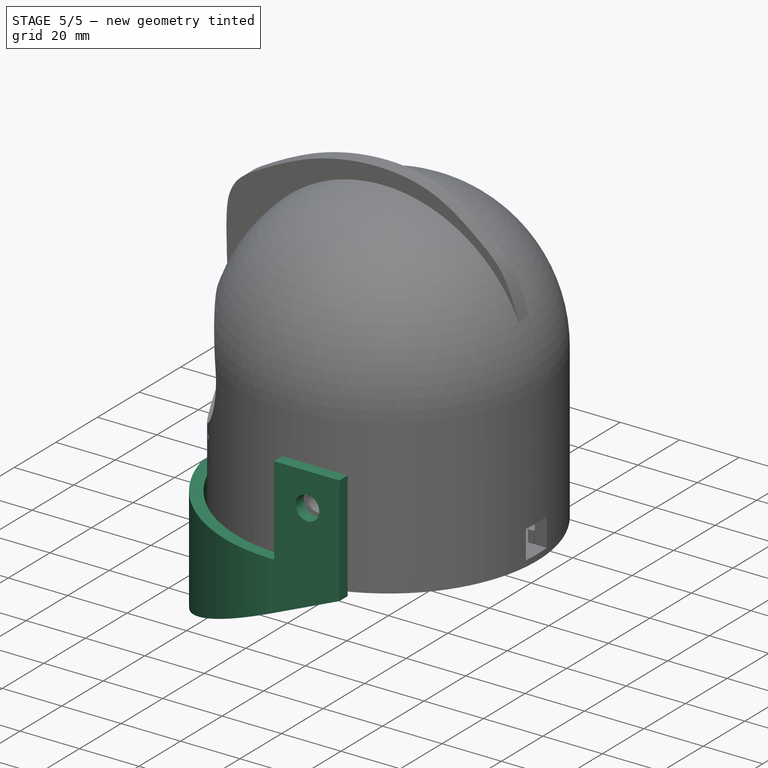
[diagram: stage 5 of 5 — iso view after this stage's code; geometry added in this stage tinted green]
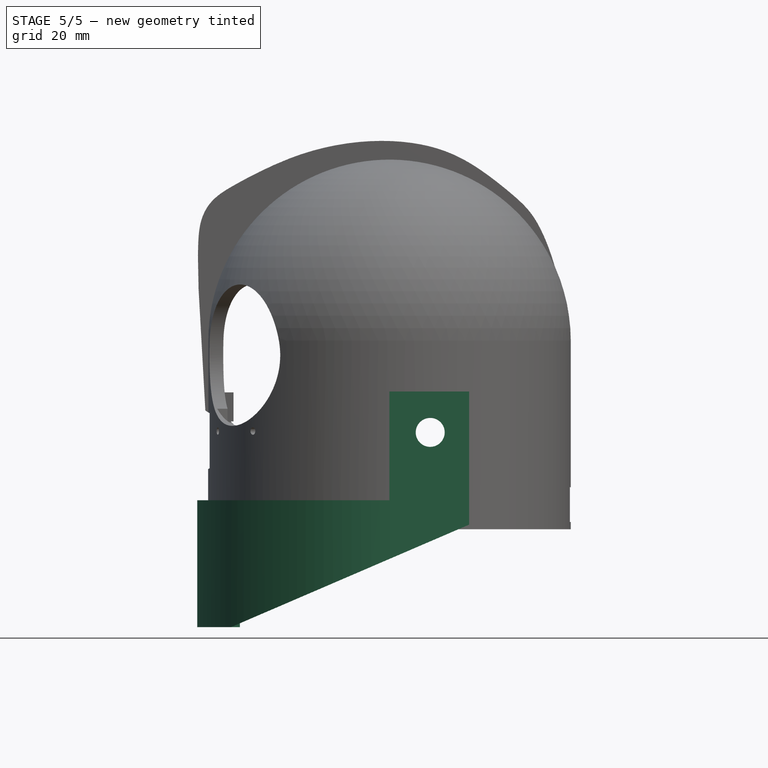
[diagram: stage 5 of 5 — front view after this stage's code; geometry added in this stage tinted green]
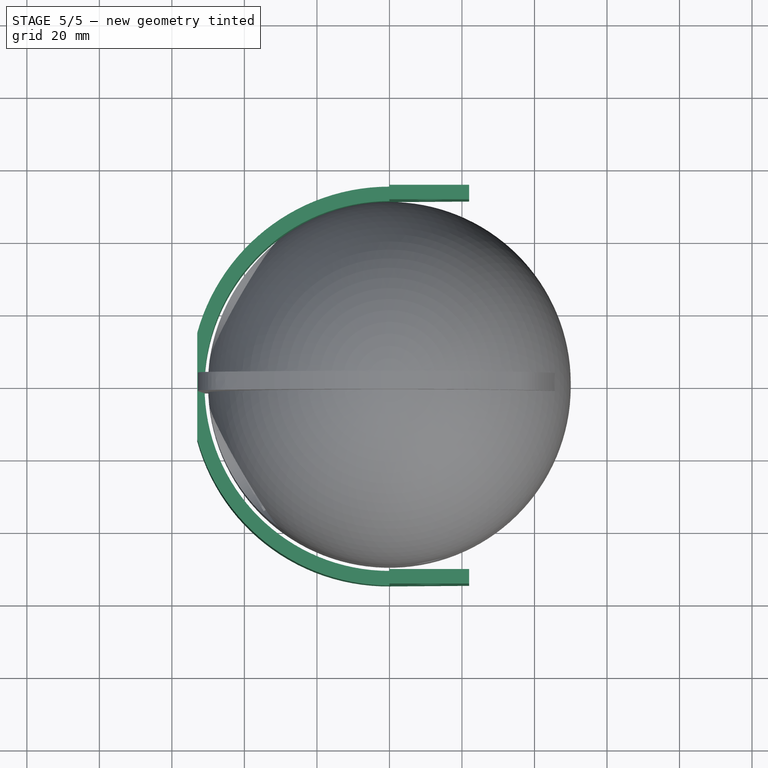
[diagram: stage 5 of 5 — top view after this stage's code; geometry added in this stage tinted green]
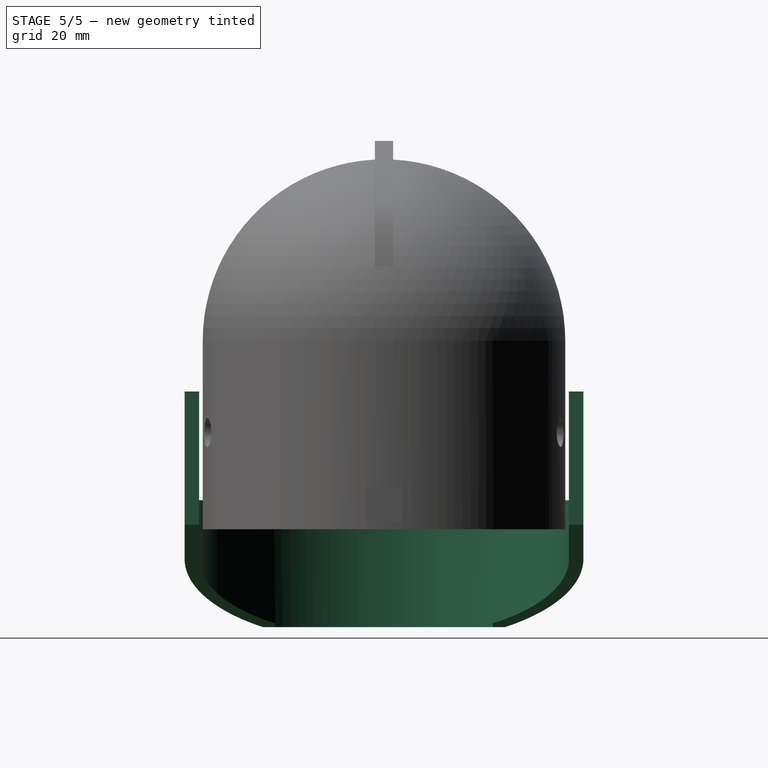
[diagram: stage 5 of 5 — right view after this stage's code; geometry added in this stage tinted green]
FEATURE [Sketcher::SketchObject] Sketch011  label="SketchoG3"
  ArcFitTolerance = 1e-06
  AttachmentSupport = -> [DatumPlane006]
  FullyConstrained = false
  MakeInternals = false
  MapMode = 5
  Placement = pos=(-34.641,-20,-4) rot=(0.377964,0.654654,-0.654654;3.86433rad)
  sketch-geometry (2):
    g0: Circle CenterX=9.68716 CenterY=20.9351 CenterZ=0 NormalX=0 NormalY=0 NormalZ=1 AngleXU=0 Radius=1
    g1: Circle CenterX=-9.63474 CenterY=20.9351 CenterZ=0 NormalX=0 NormalY=0 NormalZ=1 AngleXU=0 Radius=1
  constraints (2):
    c: Diameter(g0) = 2
    c: Diameter(g1) = 2
FEATURE [PartDesign::Plane] DatumPlane007  label="DatumPlane_oD2"
  AttachmentOffset = pos=(0,0,-11) rot=(0,0,1;0rad)
  AttachmentSupport = -> [Sketch006]
  Length = 161.963
  MapMode = 47
  Placement = pos=(-34.641,20,-4) rot=(-0.377964,0.654654,0.654654;3.86433rad)
  ResizeMode = 0
  Width = 129.166
FEATURE [Sketcher::SketchObject] Sketch012  label="Sketch_oD2"
  ArcFitTolerance = 1e-06
  AttachmentSupport = -> [DatumPlane007]
  FullyConstrained = false
  MakeInternals = false
  MapMode = 5
  Placement = pos=(-34.641,20,-4) rot=(-0.377964,0.654654,0.654654;3.86433rad)
  sketch-geometry (4):
    g0: LineSegment StartX=12.3703 StartY=-11.9633 StartZ=0 EndX=-12.7857 EndY=-11.9633 EndZ=0
    g1: LineSegment StartX=-12.7857 StartY=-11.9633 StartZ=0 EndX=-12.7857 EndY=-27.9668 EndZ=0
    g2: LineSegment StartX=-12.7857 StartY=-27.9668 StartZ=0 EndX=12.3703 EndY=-27.9668 EndZ=0
    g3: LineSegment StartX=12.3703 StartY=-27.9668 StartZ=0 EndX=12.3703 EndY=-11.9633 EndZ=0
  constraints (8):
    c: Coincident(g0,g1)
    c: Coincident(g1,g2)
    c: Coincident(g2,g3)
    c: Coincident(g3,g0)
    c: Horizontal(g0)
    c: Horizontal(g2)
    c: Vertical(g1)
    c: Vertical(g3)
FEATURE [Sketcher::SketchObject] Sketch013  label="Sketch_oD3"
  ArcFitTolerance = 1e-06
  AttachmentSupport = -> [DatumPlane007]
  FullyConstrained = false
  MakeInternals = false
  MapMode = 5
  Placement = pos=(-34.641,20,-4) rot=(-0.377964,0.654654,0.654654;3.86433rad)
  sketch-geometry (2):
    g0: Circle CenterX=9.61352 CenterY=-21.0232 CenterZ=0 NormalX=0 NormalY=0 NormalZ=1 AngleXU=0 Radius=1
    g1: Circle CenterX=-9.76157 CenterY=-20.9642 CenterZ=0 NormalX=0 NormalY=0 NormalZ=1 AngleXU=0 Radius=1
  constraints (2):
    c: Diameter(g0) = 2
    c: Diameter(g1) = 2
FEATURE [PartDesign::Plane] DatumPlane008  label="DatumPlane_tof0"
  AttachmentOffset = pos=(0,0,-7) rot=(0,0,1;0rad)
  AttachmentSupport = -> [Sketch006]
  Length = 120.374
  MapMode = 47
  Placement = pos=(-43,0,-4) rot=(0.57735,0.57735,-0.57735;4.18879rad)
  ResizeMode = 0
  Width = 125.581
FEATURE [Sketcher::SketchObject] Sketch014  label="Sketch_tof0"
  ArcFitTolerance = 1e-06
  AttachmentSupport = -> [DatumPlane008]
  FullyConstrained = false
  MakeInternals = false
  MapMode = 5
  Placement = pos=(-43,0,-4) rot=(0.57735,0.57735,-0.57735;4.18879rad)
  sketch-geometry (15):
    g0: LineSegment StartX=6.44569 StartY=39.2877 StartZ=0 EndX=-3.27254 EndY=39.2877 EndZ=0
    g1: LineSegment StartX=-3.27254 StartY=39.2877 StartZ=0 EndX=-3.27254 EndY=31.4839 EndZ=0
    g2: LineSegment StartX=4.17871 StartY=31.4138 StartZ=0 EndX=6.44569 EndY=31.4138 EndZ=0
    g3: LineSegment StartX=6.44569 StartY=31.4138 StartZ=0 EndX=6.44569 EndY=39.2877 EndZ=0
    g4: LineSegment StartX=-3.27254 StartY=31.4839 StartZ=0 EndX=-3.27254 EndY=28.6746 EndZ=0
    g5: LineSegment StartX=-3.27254 StartY=28.6746 StartZ=0 EndX=4.17871 EndY=28.6746 EndZ=0
    g6: LineSegment StartX=4.17871 StartY=28.6746 StartZ=0 EndX=4.17871 EndY=31.4138 EndZ=0
    g7: LineSegment StartX=-3.6113 StartY=18.2488 StartZ=0 EndX=-3.6113 EndY=10.2685 EndZ=0
    g8: LineSegment StartX=-3.6113 StartY=10.2685 StartZ=0 EndX=4.25081 EndY=10.2685 EndZ=0
    g9: LineSegment StartX=4.25081 StartY=10.2685 StartZ=0 EndX=4.25081 EndY=18.2488 EndZ=0
    g10: LineSegment StartX=4.25081 StartY=18.2488 StartZ=0 EndX=-3.6113 EndY=18.2488 EndZ=0
    g11: LineSegment StartX=4.25081 StartY=10.2685 StartZ=0 EndX=5.85927 EndY=10.2685 EndZ=0
    g12: LineSegment StartX=5.85927 StartY=10.2685 StartZ=0 EndX=5.85927 EndY=15.7532 EndZ=0
    g13: LineSegment StartX=5.85927 StartY=15.7532 StartZ=0 EndX=4.25081 EndY=15.7532 EndZ=0
    g14: LineSegment StartX=4.25081 StartY=15.7532 StartZ=0 EndX=4.25081 EndY=10.2685 EndZ=0
  constraints (30):
    c: Coincident(g0,g1)
    c: Coincident(g2,g3)
    c: Coincident(g3,g0)
    c: Horizontal(g0)
    c: Horizontal(g2)
    c: Vertical(g1)
    c: Vertical(g3)
    c: Coincident(g4,g5)
    c: Coincident(g5,g6)
    c: Vertical(g4)
    c: Vertical(g6)
    c: Horizontal(g5)
    c: Coincident(g7,g8)
    c: Coincident(g8,g9)
    c: Coincident(g9,g10)
    c: Coincident(g10,g7)
    c: Vertical(g7)
    c: Vertical(g9)
    c: Horizontal(g8)
    c: Horizontal(g10)
    c: Coincident(g11,g12)
    c: Coincident(g12,g13)
    c: Coincident(g13,g14)
    c: Coincident(g14,g11)
    c: Horizontal(g11)
    c: Horizontal(g13)
    c: Vertical(g12)
    c: Vertical(g14)
    c: Coincident(g11,g8)
    c: Coincident(g6,g2)
FEATURE [Sketcher::SketchObject] Sketch015  label="Sketch_tof1"
  ArcFitTolerance = 1e-06
  AttachmentSupport = -> [DatumPlane008]
  FullyConstrained = false
  MakeInternals = false
  MapMode = 5
  Placement = pos=(-43,0,-4) rot=(0.57735,0.57735,-0.57735;4.18879rad)
  sketch-geometry (2):
    g0: Circle CenterX=1.65634 CenterY=13.699 CenterZ=0 NormalX=0 NormalY=0 NormalZ=1 AngleXU=0 Radius=1
    g1: Circle CenterX=1.69183 CenterY=33.3988 CenterZ=0 NormalX=0 NormalY=0 NormalZ=1 AngleXU=0 Radius=1
  constraints (2):
    c: Diameter(g0) = 2
    c: Diameter(g1) = 2
FEATURE [PartDesign::Plane] DatumPlane010
  Length = 96.5253
  MapMode = 2
  Placement = pos=(0,0,-79) rot=(0,0,1;0rad)
  ResizeMode = 0
  Width = 128.526
FEATURE [Sketcher::SketchObject] Sketch018
  ArcFitTolerance = 1e-06
  AttachmentSupport = -> [DatumPlane010]
  FullyConstrained = false
  MakeInternals = false
  MapMode = 5
  Placement = pos=(0,0,-79) rot=(0,0,1;0rad)
  sketch-geometry (6):
    g0: ArcOfCircle CenterX=0 CenterY=0 CenterZ=0 NormalX=0 NormalY=0 NormalZ=1 AngleXU=0 Radius=51 StartAngle=1.5708 EndAngle=3.14159
    g1: ArcOfCircle CenterX=0 CenterY=0 CenterZ=0 NormalX=0 NormalY=0 NormalZ=1 AngleXU=0 Radius=55 StartAngle=1.5708 EndAngle=2.87107
    g2: LineSegment StartX=-52.9997 StartY=14.6981 StartZ=0 EndX=-52.9997 EndY=0 EndZ=0
    g3: LineSegment StartX=-52.9997 StartY=0 StartZ=0 EndX=-51 EndY=6.2e-15 EndZ=0
    g4: LineSegment StartX=3.4e-15 StartY=55 StartZ=0 EndX=-1.66665e-05 EndY=51 EndZ=0
    g5: GeomPoint X=3.4e-15 Y=55 Z=0
  constraints (15):
    c: Radius(g0) = 51
    c: Angle(g0) = 1.5708
    c: Angle(g1) = 1.30027
    c: Vertical(g2)
    c: Coincident(g1,g2)
    c: Coincident(g3,g2)
    c: Coincident(g0,g3)
    c: Coincident(g4,g1)
    c: Coincident(g4,g0)
    c: Coincident(g0,g-1)
    c: Coincident(g1,g0)
    c: PointOnObject(g0,g-1)
    c: PointOnObject(g1,g-2)
    c: Coincident(g5,g1)
    c: Radius(g1) = 55
FEATURE [PartDesign::Pad] Pad002
  Direction = (0,0,1)
  Length = 35
  Length2 = 10
  Placement = pos=(0,0,-79) rot=(0,0,1;0rad)
  Profile = -> Sketch018
  ReferenceAxis = -> Sketch018 [N_Axis]
  Suppressed = false
  Type = 0
FEATURE [PartDesign::Plane] DatumPlane011
  AttachmentSupport = -> [XZ_Plane001,Pad002]
  Length = 96.013
  MapMode = 53
  Placement = pos=(0,55,1.22e-14) rot=(1,0,0;1.5708rad)
  ResizeMode = 0
  Width = 122.013
FEATURE [Sketcher::SketchObject] Sketch019
  ArcFitTolerance = 1e-06
  AttachmentSupport = -> [DatumPlane011]
  FullyConstrained = false
  MakeInternals = false
  MapMode = 5
  Placement = pos=(0,55,1.22e-14) rot=(1,0,0;1.5708rad)
  sketch-geometry (4):
    g0: LineSegment StartX=0 StartY=-64.3292 StartZ=0 EndX=21.9805 EndY=-64.3292 EndZ=0
    g1: LineSegment StartX=21.9805 StartY=-64.3292 StartZ=0 EndX=21.9805 EndY=-14.0309 EndZ=0
    g2: LineSegment StartX=21.9805 StartY=-14.0309 StartZ=0 EndX=0 EndY=-14.0309 EndZ=0
    g3: LineSegment StartX=0 StartY=-14.0309 StartZ=0 EndX=0 EndY=-64.3292 EndZ=0
  constraints (9):
    c: Coincident(g0,g1)
    c: Coincident(g1,g2)
    c: Coincident(g2,g3)
    c: Coincident(g3,g0)
    c: Horizontal(g0)
    c: Horizontal(g2)
    c: Vertical(g1)
    c: Vertical(g3)
    c: PointOnObject(g0,g-2)
FEATURE [PartDesign::Pad] Pad003
  BaseFeature = -> Pad002
  Direction = (0,-1,2e-16)
  Length = 4
  Length2 = 10
  Placement = pos=(0,0,-79) rot=(0,0,1;0rad)
  Profile = -> Sketch019
  ReferenceAxis = -> Sketch019 [N_Axis]
  Suppressed = false
  Type = 0
FEATURE [Sketcher::SketchObject] Sketch020
  ArcFitTolerance = 1e-06
  AttachmentSupport = -> [DatumPlane011]
  FullyConstrained = false
  MakeInternals = false
  MapMode = 5
  Placement = pos=(0,55,1.22e-14) rot=(1,0,0;1.5708rad)
  sketch-geometry (4):
    g0: LineSegment StartX=26.6776 StartY=-48.7116 StartZ=0 EndX=-48.9023 EndY=-81.2374 EndZ=0
    g1: LineSegment StartX=-48.9023 StartY=-81.2374 StartZ=0 EndX=26.6776 EndY=-81.2374 EndZ=0
    g2: LineSegment StartX=26.6776 StartY=-48.7116 StartZ=0 EndX=26.6776 EndY=-81.2374 EndZ=0
    g3: Circle CenterX=11.2393 CenterY=-25.2894 CenterZ=0 NormalX=0 NormalY=0 NormalZ=1 AngleXU=0 Radius=4
  constraints (6):
    c: Coincident(g1,g0)
    c: Horizontal(g1)
    c: Coincident(g2,g0)
    c: Coincident(g2,g1)
    c: Vertical(g2)
    c: Radius(g3) = 4
FEATURE [PartDesign::Pocket] Pocket010
  BaseFeature = -> Pad003
  Direction = (0,1,-2e-16)
  Length = 25
  Length2 = 5
  Placement = pos=(0,0,-79) rot=(0,0,1;0rad)
  Profile = -> Sketch020
  ReferenceAxis = -> Sketch020 [N_Axis]
  Reversed = true
  Suppressed = false
  Type = 0
FEATURE [PartDesign::Mirrored] Mirrored
  BaseFeature = -> Pocket010
  MirrorPlane = -> XZ_Plane001
  Originals = -> [Pocket010]
  Placement = pos=(0,0,-79) rot=(0,0,1;0rad)
  Suppressed = false
  TransformMode = 1
FEATURE [PartDesign::Body] Body001  label="machoir"
  AllowCompound = false
  Group = -> [Sketch018,DatumPlane010,Pad002,DatumPlane011,Sketch019,Pad003,Sketch020,Pocket010,Mirrored]
  Origin = -> Origin001
  Tip = -> Mirrored
FEATURE [Sketcher::SketchObject] Sketch021
  ArcFitTolerance = 1e-06
  AttachmentSupport = -> [XY_Plane002]
  FullyConstrained = true
  MakeInternals = false
  MapMode = 5
  sketch-geometry (7):
    g0: LineSegment StartX=9 StartY=0 StartZ=0 EndX=4.5 EndY=7.79423 EndZ=0
    g1: LineSegment StartX=4.5 StartY=7.79423 StartZ=0 EndX=-4.5 EndY=7.79423 EndZ=0
    g2: LineSegment StartX=-4.5 StartY=7.79423 StartZ=0 EndX=-9 EndY=9e-16 EndZ=0
    g3: LineSegment StartX=-9 StartY=9e-16 StartZ=0 EndX=-4.5 EndY=-7.79423 EndZ=0
    g4: LineSegment StartX=-4.5 StartY=-7.79423 StartZ=0 EndX=4.5 EndY=-7.79423 EndZ=0
    g5: LineSegment StartX=4.5 StartY=-7.79423 StartZ=0 EndX=9 EndY=0 EndZ=0
    g6: Circle [constr] CenterX=0 CenterY=0 CenterZ=0 NormalX=0 NormalY=0 NormalZ=1 AngleXU=0 Radius=9
  constraints (16):
    c: Coincident(g0,g1)
    c: Coincident(g1,g2)
    c: Coincident(g2,g3)
    c: Coincident(g3,g4)
    c: Coincident(g4,g5)
    c: Coincident(g5,g0)
    c: Equal(g0, g1-g5) x5
    c: PointOnObject(g0,g6)
    c: PointOnObject(g1,g6)
    c: PointOnObject(g2,g6)
    c: PointOnObject(g3,g6)
    c: PointOnObject(g4,g6)
    c: PointOnObject(g5,g6)
    c: Radius(g6) = 9
    c: Coincident(g6,g-1)
    c: PointOnObject(g5,g-1)
FEATURE [PartDesign::Pad] Pad004
  Direction = (0,0,1)
  Length = 5
  Length2 = 10
  Profile = -> Sketch021
  ReferenceAxis = -> Sketch021 [N_Axis]
  Suppressed = false
  Type = 0
FEATURE [Sketcher::SketchObject] Sketch022
  ArcFitTolerance = 1e-06
  AttachmentSupport = -> [Pad004]
  FullyConstrained = true
  MakeInternals = false
  MapMode = 5
  Placement = pos=(0,0,5) rot=(0,0,1;0rad)
  sketch-geometry (1):
    g0: Circle CenterX=0 CenterY=0 CenterZ=0 NormalX=0 NormalY=0 NormalZ=1 AngleXU=0 Radius=3.75
  constraints (2):
    c: Diameter(g0) = 7.5
    c: Coincident(g0,g-1)
FEATURE [PartDesign::Pad] Pad005
  BaseFeature = -> Pad004
  Direction = (0,0,1)
  Length = 15
  Length2 = 10
  Profile = -> Sketch022
  ReferenceAxis = -> Sketch022 [N_Axis]
  Suppressed = false
  Type = 0
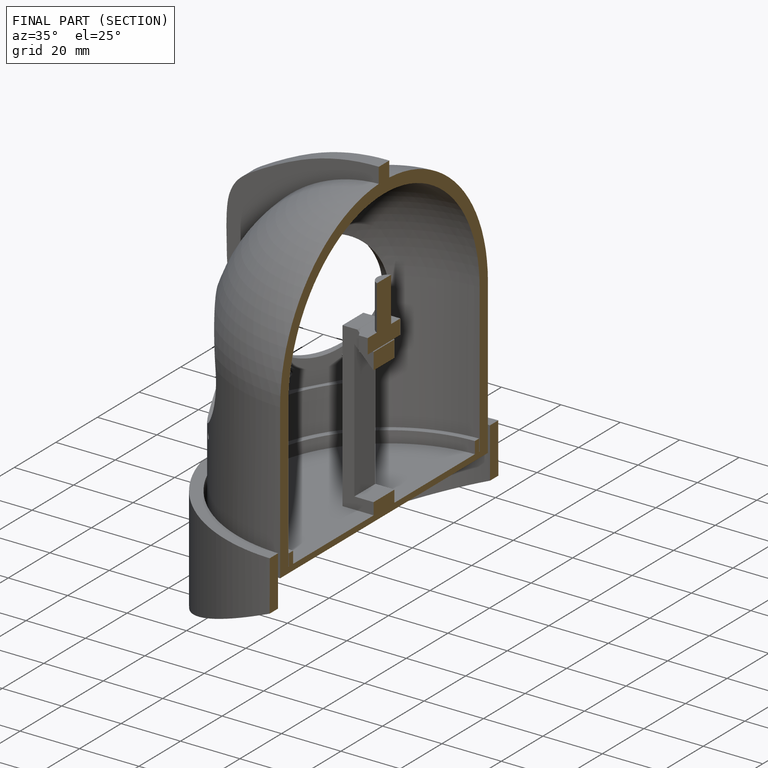
[diagram: finished part — half-section view (interior)]
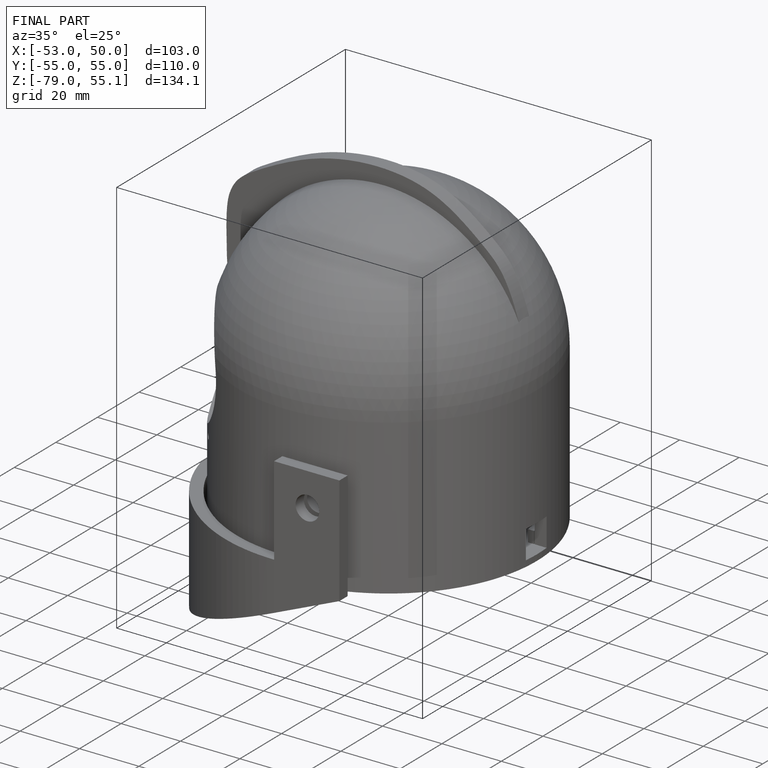
[diagram: finished part — iso view with bounding-box wireframe]
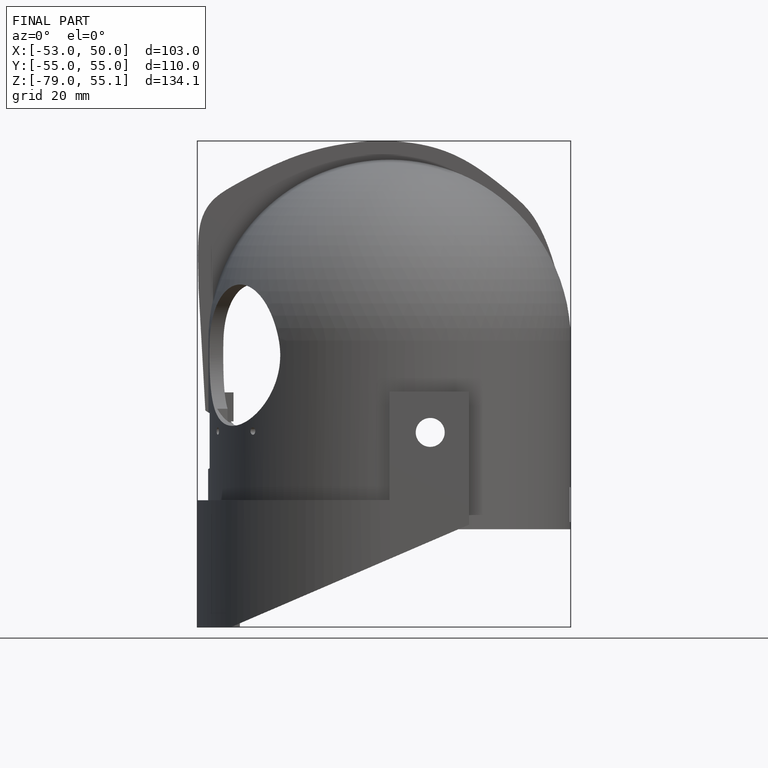
[diagram: finished part — front view with bounding-box wireframe]
